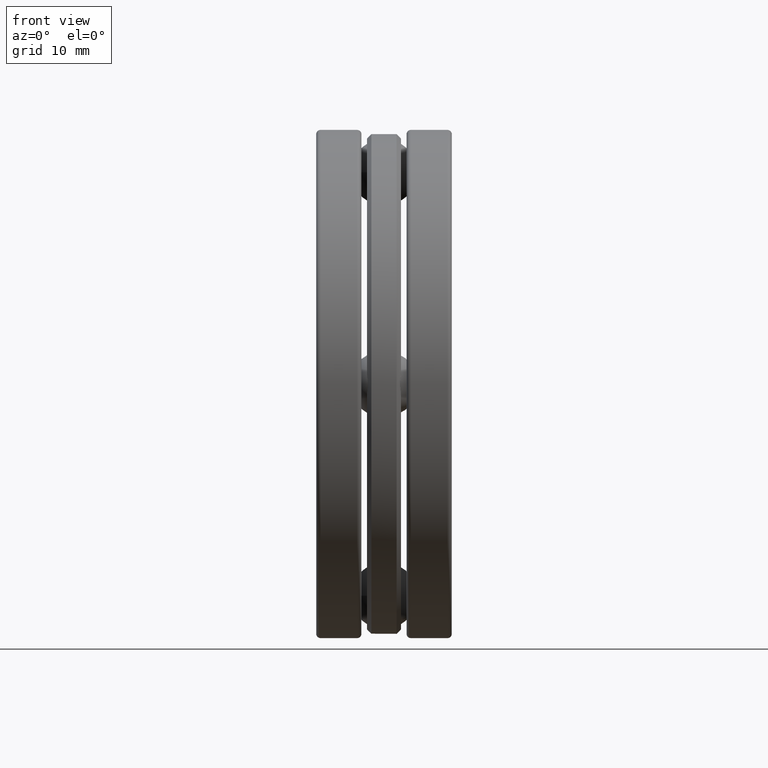
[diagram: clean part render]
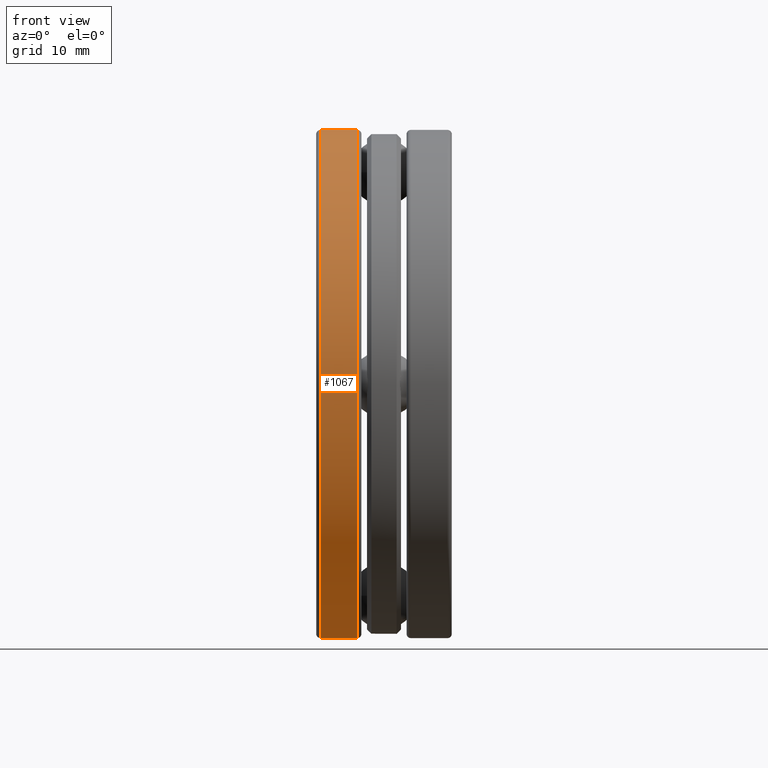
[diagram: same view with one face highlighted and labeled with its STEP entity id]
A machine part, front view. The second image highlights one B-rep face of the part: STEP entity #1067.
In plain terms, the highlighted cylindrical surface (bore or boss wall) has radius 29.9974 mm, axis along (-1, -0, -0).
Its self-contained STEP definition (entity closure, byte-faithful):
#17 = CIRCLE ( 'NONE', #243, 1.181000000000000300 ) ;
#108 = AXIS2_PLACEMENT_3D ( 'NONE', #590, #1046, #212 ) ;
#130 = CYLINDRICAL_SURFACE ( 'NONE', #1075, 1.181000000000000300 ) ;
#146 = VERTEX_POINT ( 'NONE', #905 ) ;
#188 = CARTESIAN_POINT ( 'NONE',  ( -0.2950000000000000400, 0.0000000000000000000, 0.0000000000000000000 ) ) ;
#212 = DIRECTION ( 'NONE',  ( 0.0000000000000000000, 0.0000000000000000000, 1.000000000000000000 ) ) ;
#243 = AXIS2_PLACEMENT_3D ( 'NONE', #188, #1035, #482 ) ;
#435 = ORIENTED_EDGE ( 'NONE', *, *, #444, .F. ) ;
#444 = EDGE_CURVE ( 'NONE', #521, #521, #17, .T. ) ;
#482 = DIRECTION ( 'NONE',  ( 0.0000000000000000000, 0.0000000000000000000, 1.000000000000000000 ) ) ;
#521 = VERTEX_POINT ( 'NONE', #532 ) ;
#532 = CARTESIAN_POINT ( 'NONE',  ( -0.2950000000000000400, 0.0000000000000000000, 1.181000000000000300 ) ) ;
#537 = FACE_OUTER_BOUND ( 'NONE', #943, .T. ) ;
#590 = CARTESIAN_POINT ( 'NONE',  ( -0.1250020999999999800, 0.0000000000000000000, 0.0000000000000000000 ) ) ;
#597 = DIRECTION ( 'NONE',  ( -1.000000000000000000, -0.0000000000000000000, -0.0000000000000000000 ) ) ;
#757 = ORIENTED_EDGE ( 'NONE', *, *, #919, .T. ) ;
#905 = CARTESIAN_POINT ( 'NONE',  ( -0.1250020999999999800, 0.0000000000000000000, 1.181000000000000300 ) ) ;
#919 = EDGE_CURVE ( 'NONE', #146, #146, #1060, .T. ) ;
#943 = EDGE_LOOP ( 'NONE', ( #757 ) ) ;
#967 = CARTESIAN_POINT ( 'NONE',  ( 0.0000000000000000000, 0.0000000000000000000, 0.0000000000000000000 ) ) ;
#1035 = DIRECTION ( 'NONE',  ( -1.000000000000000000, -0.0000000000000000000, -0.0000000000000000000 ) ) ;
#1046 = DIRECTION ( 'NONE',  ( -1.000000000000000000, -0.0000000000000000000, -0.0000000000000000000 ) ) ;
#1060 = CIRCLE ( 'NONE', #108, 1.181000000000000300 ) ;
#1067 = ADVANCED_FACE ( 'NONE', ( #1160, #537 ), #130, .T. ) ;
#1075 = AXIS2_PLACEMENT_3D ( 'NONE', #967, #597, #1159 ) ;
#1159 = DIRECTION ( 'NONE',  ( 0.0000000000000000000, 0.0000000000000000000, 1.000000000000000000 ) ) ;
#1160 = FACE_OUTER_BOUND ( 'NONE', #1206, .T. ) ;
#1206 = EDGE_LOOP ( 'NONE', ( #435 ) ) ;